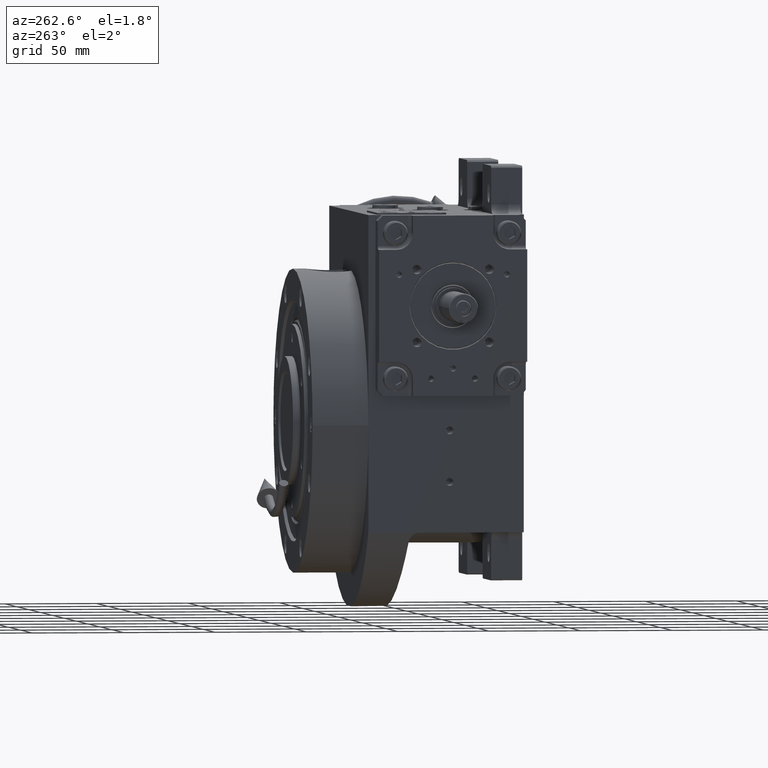
[diagram: clean part render]
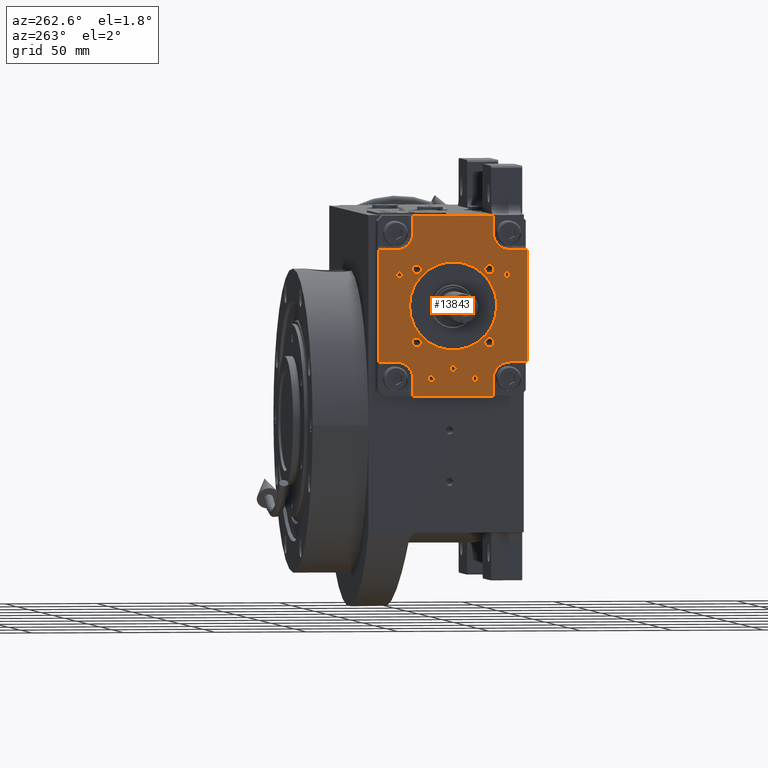
[diagram: same view with one face highlighted and labeled with its STEP entity id]
A machine part, auxiliary view. The second image highlights one B-rep face of the part: STEP entity #13843.
In plain terms, the highlighted planar face has unit normal (1, 0, -0).
Its self-contained STEP definition (entity closure, byte-faithful):
#67 = EDGE_CURVE ( 'NONE', #49934, #18135, #16758, .T. ) ;
#302 = CARTESIAN_POINT ( 'NONE',  ( -19.79898987322275872, -13.99999999999999822, 19.79898987322282267 ) ) ;
#349 = EDGE_CURVE ( 'NONE', #55268, #62085, #30491, .T. ) ;
#430 = CARTESIAN_POINT ( 'NONE',  ( 19.79898987322393822, -13.99999999999999822, 19.79898987322378190 ) ) ;
#720 = CARTESIAN_POINT ( 'NONE',  ( 22.29898987322275872, -13.99999999999999822, -19.79898987322287240 ) ) ;
#1178 = CARTESIAN_POINT ( 'NONE',  ( 1.650000000000965805, -13.99999999999999822, 34.00000000000000000 ) ) ;
#1372 = ORIENTED_EDGE ( 'NONE', *, *, #67, .F. ) ;
#1652 = DIRECTION ( 'NONE',  ( -4.295482660299454155E-29, -1.000000000000000000, -3.774758283725543281E-15 ) ) ;
#1709 = CARTESIAN_POINT ( 'NONE',  ( -18.97165082881188880, -13.99999999999994493, -14.56102186836356616 ) ) ;
#1923 = LINE ( 'NONE', #22003, #37430 ) ;
#1962 = CARTESIAN_POINT ( 'NONE',  ( -11.99999999999887912, -13.99999999999998401, 39.49999999999953104 ) ) ;
#2026 = EDGE_CURVE ( 'NONE', #24065, #44769, #13199, .T. ) ;
#2212 = CIRCLE ( 'NONE', #17769, 1.650000000000000355 ) ;
#2296 = CARTESIAN_POINT ( 'NONE',  ( 30.99999999999917577, -14.00000000000001243, -30.49999999999905498 ) ) ;
#2435 = CARTESIAN_POINT ( 'NONE',  ( -3.119331459816308882, -14.00000000000009237, 23.71108225105577461 ) ) ;
#2504 = DIRECTION ( 'NONE',  ( -4.295482660299454155E-29, -1.000000000000000000, -3.774758283725543281E-15 ) ) ;
#2550 = EDGE_CURVE ( 'NONE', #46750, #31758, #51068, .T. ) ;
#2792 = CIRCLE ( 'NONE', #47225, 2.499999999999998668 ) ;
#3050 = EDGE_CURVE ( 'NONE', #52202, #45153, #3740, .T. ) ;
#3085 = ORIENTED_EDGE ( 'NONE', *, *, #15934, .F. ) ;
#3087 = CARTESIAN_POINT ( 'NONE',  ( 7.685169508964895257, -14.00000000000008527, 22.64680274495815482 ) ) ;
#3105 = EDGE_CURVE ( 'NONE', #60213, #62398, #5810, .T. ) ;
#3114 = VERTEX_POINT ( 'NONE', #46195 ) ;
#3148 = CARTESIAN_POINT ( 'NONE',  ( -22.00000000000129674, -14.00000000000047073, -49.00000000000093081 ) ) ;
#3203 = CARTESIAN_POINT ( 'NONE',  ( 20.71231213005230032, -13.99999999999995559, -11.95552765314615229 ) ) ;
#3281 = AXIS2_PLACEMENT_3D ( 'NONE', #302, #9387, #59473 ) ;
#3321 = ORIENTED_EDGE ( 'NONE', *, *, #62120, .T. ) ;
#3399 = CARTESIAN_POINT ( 'NONE',  ( 21.44833792708046616, -14.00000000000004086, 10.57861081113255253 ) ) ;
#3740 = CIRCLE ( 'NONE', #25468, 1.649999999999998579 ) ;
#4013 = EDGE_CURVE ( 'NONE', #19808, #55268, #10846, .T. ) ;
#4234 = CARTESIAN_POINT ( 'NONE',  ( -40.50000000000071054, -14.00000000000001243, -30.50000000000095568 ) ) ;
#4324 = CARTESIAN_POINT ( 'NONE',  ( -10.34999999999887876, -13.99999999999998401, 39.49999999999953104 ) ) ;
#4342 = AXIS2_PLACEMENT_3D ( 'NONE', #49642, #5984, #24787 ) ;
#4540 = CARTESIAN_POINT ( 'NONE',  ( -31.00000000000106226, -14.00000000000001243, -39.50000000000092371 ) ) ;
#4634 = FACE_BOUND ( 'NONE', #38028, .T. ) ;
#4958 = FACE_BOUND ( 'NONE', #21480, .T. ) ;
#4973 = DIRECTION ( 'NONE',  ( 4.295482660299454155E-29, 1.000000000000000000, 3.774758283725543281E-15 ) ) ;
#5045 = VERTEX_POINT ( 'NONE', #7866 ) ;
#5135 = CARTESIAN_POINT ( 'NONE',  ( 12.00000000000112088, -13.99999999999998401, 39.50000000000046185 ) ) ;
#5285 = FACE_BOUND ( 'NONE', #38779, .T. ) ;
#5593 = DIRECTION ( 'NONE',  ( -1.498077582325793783E-28, 1.000000000000000000, 3.774758283725543281E-15 ) ) ;
#5601 = AXIS2_PLACEMENT_3D ( 'NONE', #55523, #60683, #15143 ) ;
#5810 = CIRCLE ( 'NONE', #56413, 2.499999999999998668 ) ;
#5984 = DIRECTION ( 'NONE',  ( -4.295482660299454155E-29, -1.000000000000000000, -3.774758283725543281E-15 ) ) ;
#6013 = EDGE_LOOP ( 'NONE', ( #40679, #51689 ) ) ;
#6063 = AXIS2_PLACEMENT_3D ( 'NONE', #4540, #59174, #19448 ) ;
#6147 = DIRECTION ( 'NONE',  ( -1.000000000000000000, -4.294175747842013256E-29, -2.831068712794148863E-14 ) ) ;
#6205 = VECTOR ( 'NONE', #61056, 1000.000000000000000 ) ;
#6270 = CARTESIAN_POINT ( 'NONE',  ( -31.00000000000082423, -14.00000000000001243, -30.50000000000094147 ) ) ;
#6396 = DIRECTION ( 'NONE',  ( -4.295482660299454155E-29, -1.000000000000000000, -3.774758283725543281E-15 ) ) ;
#6498 = EDGE_CURVE ( 'NONE', #6563, #30193, #2212, .T. ) ;
#6563 = VERTEX_POINT ( 'NONE', #21391 ) ;
#6572 = CARTESIAN_POINT ( 'NONE',  ( -3.118952648202116595, -13.99999999999990941, -23.71108882256597639 ) ) ;
#6892 = CARTESIAN_POINT ( 'NONE',  ( -22.34697688814391370, -13.99999999999996980, -8.409466773888212288 ) ) ;
#6920 = VECTOR ( 'NONE', #26086, 1000.000000000000000 ) ;
#7302 = CARTESIAN_POINT ( 'NONE',  ( 20.71277833345420305, -14.00000000000004263, 11.95494346992354906 ) ) ;
#7622 = CARTESIAN_POINT ( 'NONE',  ( 17.98245215247009199, -14.00000000000005329, 15.76637152696359578 ) ) ;
#7669 = CARTESIAN_POINT ( 'NONE',  ( -40.50000000000071054, -14.00000000000001243, -30.50000000000095568 ) ) ;
#7732 = CARTESIAN_POINT ( 'NONE',  ( 23.09942915084176818, -13.99999999999997868, -6.192947907790525619 ) ) ;
#7866 = CARTESIAN_POINT ( 'NONE',  ( 17.29898987322275872, -13.99999999999999822, -19.79898987322287240 ) ) ;
#8182 = AXIS2_PLACEMENT_3D ( 'NONE', #9635, #29388, #44562 ) ;
#8192 = EDGE_CURVE ( 'NONE', #62398, #60213, #62133, .T. ) ;
#8266 = CARTESIAN_POINT ( 'NONE',  ( -11.95544121681367677, -14.00000000000007994, 20.71254616477397903 ) ) ;
#8373 = CARTESIAN_POINT ( 'NONE',  ( -17.29898987322275872, -13.99999999999999822, 19.79898987322282267 ) ) ;
#8419 = ORIENTED_EDGE ( 'NONE', *, *, #22453, .T. ) ;
#8678 = DIRECTION ( 'NONE',  ( -4.295482660299454155E-29, -1.000000000000000000, -3.774758283725543281E-15 ) ) ;
#8765 = CIRCLE ( 'NONE', #20283, 1.649999999999999911 ) ;
#9387 = DIRECTION ( 'NONE',  ( -4.295482660299454155E-29, -1.000000000000000000, -3.774758283725543281E-15 ) ) ;
#9531 = AXIS2_PLACEMENT_3D ( 'NONE', #23553, #38743, #19649 ) ;
#9635 = CARTESIAN_POINT ( 'NONE',  ( 30.99999999999893774, -14.00000000000001243, -39.49999999999906208 ) ) ;
#9890 = VERTEX_POINT ( 'NONE', #56647 ) ;
#9909 = CARTESIAN_POINT ( 'NONE',  ( -22.29898987322393822, -13.99999999999999822, -19.79898987322428638 ) ) ;
#10846 = B_SPLINE_CURVE_WITH_KNOTS ( 'NONE', 3,
 ( #26663, #56372, #6572, #26325, #31836, #50563, #46039, #22435, #46999, #16939, #1709, #12092, #42171, #6892, #60903, #51859, #21152, #27297, #60567, #21803, #15983, #21477 ),
 .UNSPECIFIED., .F., .F.,
 ( 4, 2, 2, 2, 2, 2, 2, 1, 1, 2, 2, 4 ),
 ( 0.5000000711331469283, 0.5625000622415036178, 0.6250000533498601962, 0.6875000444582168857, 0.7500000355665734642, 0.8125000266749300426, 0.8750000177832867321, 0.9062500133374651323, 0.9218750111145542769, 0.9296875100030987937, 0.9375000088916434215, 1.000000000000000000 ),
 .UNSPECIFIED. ) ;
#11026 = ORIENTED_EDGE ( 'NONE', *, *, #53874, .F. ) ;
#11039 = DIRECTION ( 'NONE',  ( -1.000000000000000000, 0.000000000000000000, -2.943773171354580837E-14 ) ) ;
#11430 = CARTESIAN_POINT ( 'NONE',  ( -17.29898987322393822, -13.99999999999999822, -19.79898987322381743 ) ) ;
#11550 = EDGE_CURVE ( 'NONE', #52294, #25502, #17102, .T. ) ;
#11603 = CARTESIAN_POINT ( 'NONE',  ( -27.79486372867136978, -13.99999999999999822, -17.00000000000093081 ) ) ;
#11855 = CARTESIAN_POINT ( 'NONE',  ( 23.32664490037724292, -14.00000000000002132, 5.038317025994189180 ) ) ;
#11983 = DIRECTION ( 'NONE',  ( 2.831068712794148547E-14, 3.774758283725543281E-15, 1.000000000000000000 ) ) ;
#12092 = CARTESIAN_POINT ( 'NONE',  ( -20.71277920861294675, -13.99999999999995559, -11.95494192533104361 ) ) ;
#12133 = B_SPLINE_CURVE_WITH_KNOTS ( 'NONE', 3,
 ( #12309, #32038, #22969, #42373, #46569, #13581, #57198, #7732, #37212, #46882, #3203, #57853, #52042, #17145, #22317, #51415, #62360, #36886, #18099, #32661, #57523, #56893 ),
 .UNSPECIFIED., .F., .F.,
 ( 4, 1, 1, 2, 2, 2, 2, 2, 2, 2, 2, 4 ),
 ( 0.000000000000000000, 0.03125000444582186343, 0.04687500666873279515, 0.05468750778018826447, 0.06250000889164369910, 0.1250000177832869819, 0.1875000266749302924, 0.2500000355665735752, 0.3125000444582168857, 0.3750000533498602517, 0.4375000622415035623, 0.5000000711331469283 ),
 .UNSPECIFIED. ) ;
#12241 = EDGE_CURVE ( 'NONE', #9890, #55003, #8765, .T. ) ;
#12309 = CARTESIAN_POINT ( 'NONE',  ( 23.86397420030310101, -13.99999855607482502, 1.113405617703122630E-07 ) ) ;
#12457 = EDGE_LOOP ( 'NONE', ( #42161, #50963 ) ) ;
#12504 = CARTESIAN_POINT ( 'NONE',  ( -18.97212075496599226, -14.00000000000005507, 14.56041685813999997 ) ) ;
#12816 = CARTESIAN_POINT ( 'NONE',  ( -14.56088801808533439, -14.00000000000007105, 18.97165839184616587 ) ) ;
#13199 = LINE ( 'NONE', #3148, #62358 ) ;
#13202 = VECTOR ( 'NONE', #17725, 1000.000000000000000 ) ;
#13216 = CARTESIAN_POINT ( 'NONE',  ( 40.49999999999929656, -14.00000000000001243, -30.49999999999904077 ) ) ;
#13284 = EDGE_CURVE ( 'NONE', #45153, #52202, #62454, .T. ) ;
#13300 = CIRCLE ( 'NONE', #25670, 2.499999999999998668 ) ;
#13581 = CARTESIAN_POINT ( 'NONE',  ( 23.47920115566111221, -13.99999999999998224, -4.271604635540419359 ) ) ;
#13606 = DIRECTION ( 'NONE',  ( -4.295482660299454155E-29, -1.000000000000000000, -3.774758283725543281E-15 ) ) ;
#13630 = EDGE_LOOP ( 'NONE', ( #53972, #28519 ) ) ;
#13641 = ORIENTED_EDGE ( 'NONE', *, *, #63074, .F. ) ;
#13843 = ADVANCED_FACE ( 'NONE', ( #53489, #63808, #45064, #29262, #4958, #4634, #5285, #14065, #30217, #19858, #39587 ), #14395, .F. ) ;
#14065 = FACE_BOUND ( 'NONE', #29039, .T. ) ;
#14322 = CIRCLE ( 'NONE', #39096, 2.499999999999998668 ) ;
#14395 = PLANE ( 'NONE',  #59405 ) ;
#14700 = EDGE_CURVE ( 'NONE', #48105, #3114, #50777, .T. ) ;
#15022 = ORIENTED_EDGE ( 'NONE', *, *, #53266, .F. ) ;
#15143 = DIRECTION ( 'NONE',  ( 1.000000000000000000, 0.000000000000000000, 2.733503659114971031E-14 ) ) ;
#15509 = VERTEX_POINT ( 'NONE', #37306 ) ;
#15934 = EDGE_CURVE ( 'NONE', #48105, #24065, #39194, .T. ) ;
#15952 = ORIENTED_EDGE ( 'NONE', *, *, #2550, .F. ) ;
#15983 = CARTESIAN_POINT ( 'NONE',  ( -23.86245127016168865, -13.99999999999999467, -1.574215097676592512 ) ) ;
#16452 = CARTESIAN_POINT ( 'NONE',  ( -21.99999999999893774, -13.99999999999998401, 39.49999999999952394 ) ) ;
#16467 = CIRCLE ( 'NONE', #8182, 9.000000000000001776 ) ;
#16577 = ORIENTED_EDGE ( 'NONE', *, *, #2026, .F. ) ;
#16758 = CIRCLE ( 'NONE', #9531, 2.499999999999998668 ) ;
#16884 = ORIENTED_EDGE ( 'NONE', *, *, #17688, .F. ) ;
#16939 = CARTESIAN_POINT ( 'NONE',  ( -17.98245375129773294, -13.99999999999993605, -15.76636968212421763 ) ) ;
#17014 = EDGE_CURVE ( 'NONE', #23473, #56880, #36434, .T. ) ;
#17026 = CARTESIAN_POINT ( 'NONE',  ( 23.36748957619225564, -14.00000000000001954, 4.845252721683312558 ) ) ;
#17102 = CIRCLE ( 'NONE', #41898, 1.650000000000000355 ) ;
#17145 = CARTESIAN_POINT ( 'NONE',  ( 15.76650524893556238, -13.99999999999992717, -17.98226651476915805 ) ) ;
#17308 = ORIENTED_EDGE ( 'NONE', *, *, #4013, .T. ) ;
#17350 = CARTESIAN_POINT ( 'NONE',  ( -23.63854925147816033, -14.00000000000000888, 3.311476437734099498 ) ) ;
#17670 = CARTESIAN_POINT ( 'NONE',  ( -23.86397420030304772, -13.99999855607482502, -1.113405617703122630E-07 ) ) ;
#17682 = ORIENTED_EDGE ( 'NONE', *, *, #17014, .F. ) ;
#17688 = EDGE_CURVE ( 'NONE', #18135, #49934, #23526, .T. ) ;
#17725 = DIRECTION ( 'NONE',  ( 2.831068712794148547E-14, 3.774758283725543281E-15, 1.000000000000000000 ) ) ;
#17769 = AXIS2_PLACEMENT_3D ( 'NONE', #1962, #50809, #11039 ) ;
#17984 = CARTESIAN_POINT ( 'NONE',  ( 15.76639915680304682, -14.00000000000006750, 17.98227038497826769 ) ) ;
#18099 = CARTESIAN_POINT ( 'NONE',  ( 6.191961161476491782, -13.99999999999991473, -23.09972976944129996 ) ) ;
#18135 = VERTEX_POINT ( 'NONE', #9909 ) ;
#18305 = CARTESIAN_POINT ( 'NONE',  ( 23.70962956883355588, -14.00000000000001243, 3.125609056103567429 ) ) ;
#18558 = CARTESIAN_POINT ( 'NONE',  ( -30.99999999999893774, -13.99999999999998401, 39.49999999999905498 ) ) ;
#18598 = EDGE_CURVE ( 'NONE', #29798, #36440, #43240, .T. ) ;
#18614 = VERTEX_POINT ( 'NONE', #44449 ) ;
#19222 = DIRECTION ( 'NONE',  ( 1.000000000000000000, 4.294175747842013256E-29, 2.831068712794148863E-14 ) ) ;
#19448 = DIRECTION ( 'NONE',  ( 2.775557561562890720E-14, 3.854941057726237111E-15, 1.000000000000000000 ) ) ;
#19522 = ORIENTED_EDGE ( 'NONE', *, *, #38888, .F. ) ;
#19536 = AXIS2_PLACEMENT_3D ( 'NONE', #5135, #40086, #34918 ) ;
#19649 = DIRECTION ( 'NONE',  ( 1.000000000000000000, 0.000000000000000000, 2.775557561562892929E-14 ) ) ;
#19716 = VERTEX_POINT ( 'NONE', #6270 ) ;
#19762 = DIRECTION ( 'NONE',  ( 1.000000000000000000, 4.294175747842013256E-29, 2.831068712794148863E-14 ) ) ;
#19808 = VERTEX_POINT ( 'NONE', #42183 ) ;
#19858 = FACE_BOUND ( 'NONE', #39520, .T. ) ;
#19888 = ORIENTED_EDGE ( 'NONE', *, *, #349, .T. ) ;
#20283 = AXIS2_PLACEMENT_3D ( 'NONE', #26711, #35447, #55786 ) ;
#20567 = CARTESIAN_POINT ( 'NONE',  ( 10.35000000000112053, -13.99999999999998401, 39.50000000000023448 ) ) ;
#20785 = ORIENTED_EDGE ( 'NONE', *, *, #57580, .T. ) ;
#20982 = DIRECTION ( 'NONE',  ( 1.000000000000000000, 0.000000000000000000, 2.636779683484748046E-14 ) ) ;
#21152 = CARTESIAN_POINT ( 'NONE',  ( -23.24092231173644052, -13.99999999999998224, -5.420263831053940606 ) ) ;
#21391 = CARTESIAN_POINT ( 'NONE',  ( -13.64999999999887947, -13.99999999999998401, 39.49999999999953104 ) ) ;
#21477 = CARTESIAN_POINT ( 'NONE',  ( -23.86397420030304772, -13.99999855607482502, -1.113405617703122630E-07 ) ) ;
#21480 = EDGE_LOOP ( 'NONE', ( #59188, #17308, #19888 ) ) ;
#21803 = CARTESIAN_POINT ( 'NONE',  ( -23.70962961231633770, -13.99999999999998401, -3.125608614640585259 ) ) ;
#21912 = CIRCLE ( 'NONE', #4342, 1.649999999999998579 ) ;
#22003 = CARTESIAN_POINT ( 'NONE',  ( 40.50000000000094502, -13.99999999999999822, 30.50000000000117950 ) ) ;
#22186 = ORIENTED_EDGE ( 'NONE', *, *, #50216, .F. ) ;
#22194 = AXIS2_PLACEMENT_3D ( 'NONE', #32367, #52699, #62372 ) ;
#22197 = CARTESIAN_POINT ( 'NONE',  ( -1.566779169208735389, -14.00000000000008882, 23.86393717191058528 ) ) ;
#22255 = ORIENTED_EDGE ( 'NONE', *, *, #6498, .F. ) ;
#22317 = CARTESIAN_POINT ( 'NONE',  ( 14.56088552662168389, -13.99999999999992895, -18.97166031808825792 ) ) ;
#22435 = CARTESIAN_POINT ( 'NONE',  ( -14.56055017842635557, -13.99999999999993072, -18.97195719011450876 ) ) ;
#22453 = EDGE_CURVE ( 'NONE', #3114, #36780, #16467, .T. ) ;
#22602 = DIRECTION ( 'NONE',  ( 1.000000000000000000, 0.000000000000000000, 3.784851220313037103E-14 ) ) ;
#22842 = CARTESIAN_POINT ( 'NONE',  ( 18.97164947463525664, -14.00000000000005329, 14.56102366058744835 ) ) ;
#22969 = CARTESIAN_POINT ( 'NONE',  ( 23.80536272683590227, -13.99999999999999112, -1.958930260381883004 ) ) ;
#23019 = CARTESIAN_POINT ( 'NONE',  ( -22.00000000000105871, -14.00000000000001243, -39.50000000000092371 ) ) ;
#23149 = CARTESIAN_POINT ( 'NONE',  ( -22.64668203140375269, -14.00000000000003020, 7.685839165587933230 ) ) ;
#23168 = VERTEX_POINT ( 'NONE', #24140 ) ;
#23267 = CARTESIAN_POINT ( 'NONE',  ( 12.00000000000112088, -13.99999999999998401, 39.50000000000046185 ) ) ;
#23473 = VERTEX_POINT ( 'NONE', #53467 ) ;
#23526 = CIRCLE ( 'NONE', #37988, 2.499999999999998668 ) ;
#23553 = CARTESIAN_POINT ( 'NONE',  ( -19.79898987322393822, -13.99999999999999822, -19.79898987322428638 ) ) ;
#24065 = VERTEX_POINT ( 'NONE', #48546 ) ;
#24140 = CARTESIAN_POINT ( 'NONE',  ( 31.09486372867042547, -13.99999999999999822, -16.99999999999905853 ) ) ;
#24785 = VECTOR ( 'NONE', #57441, 1000.000000000000000 ) ;
#24787 = DIRECTION ( 'NONE',  ( -1.000000000000000000, 0.000000000000000000, -2.733503659114971031E-14 ) ) ;
#25159 = EDGE_LOOP ( 'NONE', ( #19522, #13641 ) ) ;
#25468 = AXIS2_PLACEMENT_3D ( 'NONE', #55568, #2504, #22602 ) ;
#25502 = VERTEX_POINT ( 'NONE', #46584 ) ;
#25670 = AXIS2_PLACEMENT_3D ( 'NONE', #26928, #50504, #46637 ) ;
#25968 = VERTEX_POINT ( 'NONE', #16452 ) ;
#26086 = DIRECTION ( 'NONE',  ( 1.000000000000000000, 4.294175747842013256E-29, 2.831068712794148863E-14 ) ) ;
#26109 = EDGE_CURVE ( 'NONE', #47946, #23473, #62614, .T. ) ;
#26325 = CARTESIAN_POINT ( 'NONE',  ( -6.192332379422525790, -13.99999999999990941, -23.09972376668354954 ) ) ;
#26424 = CARTESIAN_POINT ( 'NONE',  ( -23.86397420030304772, -13.99999855607482502, -1.113405617703122630E-07 ) ) ;
#26436 = CARTESIAN_POINT ( 'NONE',  ( 22.00000000000141398, -13.99999999999952749, 49.00000000000071054 ) ) ;
#26663 = CARTESIAN_POINT ( 'NONE',  ( -2.721109384656056105E-10, -13.99999927803739830, -23.86397666347577484 ) ) ;
#26711 = CARTESIAN_POINT ( 'NONE',  ( 9.625633623500127400E-13, -13.99999999999999822, 34.00000000000000000 ) ) ;
#26730 = CARTESIAN_POINT ( 'NONE',  ( -40.49999999999905498, -13.99999999999999822, 30.49999999999882050 ) ) ;
#26928 = CARTESIAN_POINT ( 'NONE',  ( 19.79898987322275872, -13.99999999999999822, -19.79898987322287240 ) ) ;
#27297 = CARTESIAN_POINT ( 'NONE',  ( -23.32664505306335201, -13.99999999999997691, -5.038316317723427140 ) ) ;
#27378 = CARTESIAN_POINT ( 'NONE',  ( 22.34697646102477364, -14.00000000000003197, 8.409467918700963551 ) ) ;
#27949 = DIRECTION ( 'NONE',  ( 4.295482660299454155E-29, 1.000000000000000000, 3.774758283725543281E-15 ) ) ;
#27986 = CARTESIAN_POINT ( 'NONE',  ( -11.99999999999887912, -13.99999999999998401, 39.49999999999953104 ) ) ;
#28026 = DIRECTION ( 'NONE',  ( 1.000000000000000000, 4.294175747842013256E-29, 2.831068712794148863E-14 ) ) ;
#28142 = CARTESIAN_POINT ( 'NONE',  ( -40.50000000000071054, -14.00000000000001243, -30.50000000000095568 ) ) ;
#28444 = DIRECTION ( 'NONE',  ( 1.000000000000000000, 0.000000000000000000, 2.943773171354582099E-14 ) ) ;
#28519 = ORIENTED_EDGE ( 'NONE', *, *, #3105, .F. ) ;
#28620 = DIRECTION ( 'NONE',  ( -4.295482660299454155E-29, -1.000000000000000000, -3.774758283725543281E-15 ) ) ;
#28797 = VERTEX_POINT ( 'NONE', #32428 ) ;
#28978 = LINE ( 'NONE', #62247, #31089 ) ;
#29039 = EDGE_LOOP ( 'NONE', ( #1372, #16884 ) ) ;
#29134 = DIRECTION ( 'NONE',  ( -1.000000000000000000, 0.000000000000000000, -2.775557561562892929E-14 ) ) ;
#29187 = CARTESIAN_POINT ( 'NONE',  ( 21.99999999999869971, -14.00000000000047073, -48.99999999999953104 ) ) ;
#29262 = FACE_OUTER_BOUND ( 'NONE', #35145, .T. ) ;
#29388 = DIRECTION ( 'NONE',  ( 4.295482660299454155E-29, 1.000000000000000000, 3.774758283725543281E-15 ) ) ;
#29484 = VECTOR ( 'NONE', #19762, 1000.000000000000000 ) ;
#29489 = VECTOR ( 'NONE', #46148, 1000.000000000000000 ) ;
#29580 = DIRECTION ( 'NONE',  ( -4.295482660299454155E-29, -1.000000000000000000, -3.774758283725543281E-15 ) ) ;
#29798 = VERTEX_POINT ( 'NONE', #34496 ) ;
#30193 = VERTEX_POINT ( 'NONE', #4324 ) ;
#30217 = FACE_BOUND ( 'NONE', #54845, .T. ) ;
#30296 = CIRCLE ( 'NONE', #63307, 1.650000000000000355 ) ;
#30391 = CARTESIAN_POINT ( 'NONE',  ( -30.99999999999905498, -13.99999999999999822, 30.49999999999905498 ) ) ;
#30491 = B_SPLINE_CURVE_WITH_KNOTS ( 'NONE', 3,
 ( #17670, #62565, #61609, #17350, #42260, #52571, #37091, #46779, #23149, #41930, #57092, #12504, #61933, #31917, #12816, #8266, #56773, #37407, #32242, #2435, #22197, #47410, #51938, #41621, #3087, #32550, #47722, #37719, #17984, #7622, #22842, #7302, #3399, #27378, #47082, #61288, #42568, #11855, #17026, #18305, #62246, #57408 ),
 .UNSPECIFIED., .F., .F.,
 ( 4, 1, 1, 2, 2, 2, 2, 2, 2, 2, 2, 2, 2, 2, 2, 2, 2, 2, 1, 1, 2, 2, 4 ),
 ( 0.000000000000000000, 0.03125000000000020123, 0.04687500000000029143, 0.05468750000000034694, 0.06250000000000038858, 0.1250000000000004718, 0.1875000000000005551, 0.2500000000000006661, 0.3125000000000006661, 0.3750000000000006661, 0.4375000000000007216, 0.5000000000000006661, 0.5625000000000007772, 0.6250000000000007772, 0.6875000000000007772, 0.7500000000000006661, 0.8125000000000005551, 0.8750000000000004441, 0.9062500000000004441, 0.9218750000000003331, 0.9296875000000003331, 0.9375000000000002220, 1.000000000000000000 ),
 .UNSPECIFIED. ) ;
#30538 = DIRECTION ( 'NONE',  ( -1.000000000000000000, 0.000000000000000000, -2.636779683484748046E-14 ) ) ;
#30758 = DIRECTION ( 'NONE',  ( -2.831068712794148547E-14, -3.774758283725543281E-15, -1.000000000000000000 ) ) ;
#31089 = VECTOR ( 'NONE', #28026, 1000.000000000000000 ) ;
#31195 = ORIENTED_EDGE ( 'NONE', *, *, #11550, .F. ) ;
#31454 = DIRECTION ( 'NONE',  ( 1.000000000000000000, 0.000000000000000000, 2.636779683484748046E-14 ) ) ;
#31758 = VERTEX_POINT ( 'NONE', #37527 ) ;
#31836 = CARTESIAN_POINT ( 'NONE',  ( -7.685173543682704889, -13.99999999999991118, -22.64680135628322333 ) ) ;
#31917 = CARTESIAN_POINT ( 'NONE',  ( -15.76650740898569225, -14.00000000000006750, 17.98226460072634225 ) ) ;
#31993 = VERTEX_POINT ( 'NONE', #44263 ) ;
#32038 = CARTESIAN_POINT ( 'NONE',  ( 23.86322586898059939, -13.99999999999999822, -0.7869473592178296562 ) ) ;
#32143 = CARTESIAN_POINT ( 'NONE',  ( -19.79898987322393822, -13.99999999999999822, -19.79898987322428638 ) ) ;
#32242 = CARTESIAN_POINT ( 'NONE',  ( -6.191965501752854983, -14.00000000000008527, 23.09972859531175615 ) ) ;
#32367 = CARTESIAN_POINT ( 'NONE',  ( -29.44486372867137192, -13.99999999999999822, -17.00000000000093081 ) ) ;
#32428 = CARTESIAN_POINT ( 'NONE',  ( 22.00000000000141398, -13.99999999999952749, 49.00000000000071054 ) ) ;
#32550 = CARTESIAN_POINT ( 'NONE',  ( 10.57957080955147511, -14.00000000000007994, 21.44796303468496035 ) ) ;
#32557 = CARTESIAN_POINT ( 'NONE',  ( 21.99999999999869971, -14.00000000000047073, -48.99999999999953104 ) ) ;
#32661 = CARTESIAN_POINT ( 'NONE',  ( 3.119326620315172605, -13.99999999999990941, -23.71108290340073665 ) ) ;
#32945 = DIRECTION ( 'NONE',  ( 2.831068712794148547E-14, 3.774758283725543281E-15, 1.000000000000000000 ) ) ;
#33161 = DIRECTION ( 'NONE',  ( 1.000000000000000000, 0.000000000000000000, 2.943773171354580837E-14 ) ) ;
#33950 = CARTESIAN_POINT ( 'NONE',  ( 9.625633623500127400E-13, -13.99999999999999822, 34.00000000000000000 ) ) ;
#34496 = CARTESIAN_POINT ( 'NONE',  ( 31.00000000000094502, -13.99999999999999822, 30.50000000000094147 ) ) ;
#34918 = DIRECTION ( 'NONE',  ( 1.000000000000000000, 0.000000000000000000, 2.943773171354580837E-14 ) ) ;
#35145 = EDGE_LOOP ( 'NONE', ( #11026, #48241, #20785, #17682, #40342, #3321, #42433, #16577, #3085, #56316, #8419, #15022, #59112, #63277, #41439, #41556 ) ) ;
#35447 = DIRECTION ( 'NONE',  ( -4.295482660299454155E-29, -1.000000000000000000, -3.774758283725543281E-15 ) ) ;
#35601 = CIRCLE ( 'NONE', #5601, 1.649999999999998579 ) ;
#35603 = CARTESIAN_POINT ( 'NONE',  ( 40.50000000000094502, -13.99999999999999822, 30.50000000000117950 ) ) ;
#35826 = LINE ( 'NONE', #26436, #29489 ) ;
#36434 = LINE ( 'NONE', #26730, #6920 ) ;
#36440 = VERTEX_POINT ( 'NONE', #60661 ) ;
#36780 = VERTEX_POINT ( 'NONE', #2296 ) ;
#36886 = CARTESIAN_POINT ( 'NONE',  ( 7.685219915720692185, -13.99999999999991296, -22.64685220041129199 ) ) ;
#37091 = CARTESIAN_POINT ( 'NONE',  ( -23.44379417511130725, -14.00000000000001599, 4.461832321008357916 ) ) ;
#37212 = CARTESIAN_POINT ( 'NONE',  ( 22.64668168243262514, -13.99999999999997158, -7.685840235348960547 ) ) ;
#37306 = CARTESIAN_POINT ( 'NONE',  ( -21.99999999999858247, -13.99999999999952749, 48.99999999999953104 ) ) ;
#37407 = CARTESIAN_POINT ( 'NONE',  ( -7.685223904494162817, -14.00000000000008527, 22.64685083059221782 ) ) ;
#37408 = CARTESIAN_POINT ( 'NONE',  ( 40.50000000000094502, -13.99999999999999822, 30.50000000000117950 ) ) ;
#37430 = VECTOR ( 'NONE', #6147, 1000.000000000000000 ) ;
#37527 = CARTESIAN_POINT ( 'NONE',  ( 22.29898987322393822, -13.99999999999999822, 19.79898987322382098 ) ) ;
#37719 = CARTESIAN_POINT ( 'NONE',  ( 14.56054772235363082, -14.00000000000006928, 18.97195909268343073 ) ) ;
#37988 = AXIS2_PLACEMENT_3D ( 'NONE', #32143, #13606, #29134 ) ;
#38028 = EDGE_LOOP ( 'NONE', ( #63348, #31195 ) ) ;
#38397 = CIRCLE ( 'NONE', #61065, 1.649999999999999911 ) ;
#38743 = DIRECTION ( 'NONE',  ( -4.295482660299454155E-29, -1.000000000000000000, -3.774758283725543281E-15 ) ) ;
#38779 = EDGE_LOOP ( 'NONE', ( #40779, #22255 ) ) ;
#38888 = EDGE_CURVE ( 'NONE', #23168, #31993, #35601, .T. ) ;
#39096 = AXIS2_PLACEMENT_3D ( 'NONE', #45977, #1652, #31454 ) ;
#39194 = LINE ( 'NONE', #29187, #48260 ) ;
#39520 = EDGE_LOOP ( 'NONE', ( #22186, #15952 ) ) ;
#39587 = FACE_BOUND ( 'NONE', #13630, .T. ) ;
#40086 = DIRECTION ( 'NONE',  ( -4.295482660299454155E-29, -1.000000000000000000, -3.774758283725543281E-15 ) ) ;
#40342 = ORIENTED_EDGE ( 'NONE', *, *, #26109, .F. ) ;
#40679 = ORIENTED_EDGE ( 'NONE', *, *, #3050, .F. ) ;
#40753 = AXIS2_PLACEMENT_3D ( 'NONE', #430, #29580, #30538 ) ;
#40779 = ORIENTED_EDGE ( 'NONE', *, *, #49673, .F. ) ;
#41439 = ORIENTED_EDGE ( 'NONE', *, *, #18598, .T. ) ;
#41556 = ORIENTED_EDGE ( 'NONE', *, *, #60072, .F. ) ;
#41621 = CARTESIAN_POINT ( 'NONE',  ( 6.192328095637854801, -14.00000000000008349, 23.09972492920076093 ) ) ;
#41898 = AXIS2_PLACEMENT_3D ( 'NONE', #23267, #62355, #43629 ) ;
#41930 = CARTESIAN_POINT ( 'NONE',  ( -21.44818571229936666, -14.00000000000004086, 10.57917287093051684 ) ) ;
#42161 = ORIENTED_EDGE ( 'NONE', *, *, #62545, .F. ) ;
#42171 = CARTESIAN_POINT ( 'NONE',  ( -21.44833860699378647, -13.99999999999996092, -10.57860939760698749 ) ) ;
#42183 = CARTESIAN_POINT ( 'NONE',  ( -2.721109384656056105E-10, -13.99999927803739830, -23.86397666347577484 ) ) ;
#42260 = CARTESIAN_POINT ( 'NONE',  ( -23.54577778822957157, -14.00000000000002132, 3.887974903385350345 ) ) ;
#42373 = CARTESIAN_POINT ( 'NONE',  ( 23.63854918778859115, -13.99999999999998401, -3.311476904161794632 ) ) ;
#42433 = ORIENTED_EDGE ( 'NONE', *, *, #46383, .T. ) ;
#42568 = CARTESIAN_POINT ( 'NONE',  ( 23.24092213513678118, -14.00000000000002132, 5.420264589931520050 ) ) ;
#43014 = VECTOR ( 'NONE', #11983, 1000.000000000000000 ) ;
#43240 = CIRCLE ( 'NONE', #48393, 9.000000000000001776 ) ;
#43629 = DIRECTION ( 'NONE',  ( -1.000000000000000000, 0.000000000000000000, -2.943773171354580837E-14 ) ) ;
#43697 = CARTESIAN_POINT ( 'NONE',  ( 23.86397420030310101, -13.99999855607482502, 1.113405617703122630E-07 ) ) ;
#44108 = CARTESIAN_POINT ( 'NONE',  ( 1.571558834619984456E-28, -13.99999999999999822, 0.000000000000000000 ) ) ;
#44263 = CARTESIAN_POINT ( 'NONE',  ( 27.79486372867042476, -13.99999999999999822, -16.99999999999905853 ) ) ;
#44449 = CARTESIAN_POINT ( 'NONE',  ( 40.49999999999929656, -14.00000000000001243, -30.49999999999904077 ) ) ;
#44562 = DIRECTION ( 'NONE',  ( -1.000000000000000000, 0.000000000000000000, -2.852656382717415620E-14 ) ) ;
#44612 = EDGE_CURVE ( 'NONE', #5045, #60907, #13300, .T. ) ;
#44689 = EDGE_CURVE ( 'NONE', #60907, #5045, #14322, .T. ) ;
#44766 = CARTESIAN_POINT ( 'NONE',  ( 31.00000000000106226, -13.99999999999998401, 39.50000000000071054 ) ) ;
#44769 = VERTEX_POINT ( 'NONE', #23019 ) ;
#45064 = FACE_BOUND ( 'NONE', #12457, .T. ) ;
#45153 = VERTEX_POINT ( 'NONE', #46549 ) ;
#45977 = CARTESIAN_POINT ( 'NONE',  ( 19.79898987322275872, -13.99999999999999822, -19.79898987322282977 ) ) ;
#46039 = CARTESIAN_POINT ( 'NONE',  ( -11.95576278632398903, -13.99999999999991829, -20.71224872910296000 ) ) ;
#46148 = DIRECTION ( 'NONE',  ( -2.831068712794148547E-14, -3.774758283725543281E-15, -1.000000000000000000 ) ) ;
#46195 = CARTESIAN_POINT ( 'NONE',  ( 21.99999999999893774, -14.00000000000001243, -39.49999999999953815 ) ) ;
#46383 = EDGE_CURVE ( 'NONE', #19716, #44769, #61821, .T. ) ;
#46549 = CARTESIAN_POINT ( 'NONE',  ( -31.09486372867137050, -13.99999999999999822, -17.00000000000093081 ) ) ;
#46569 = CARTESIAN_POINT ( 'NONE',  ( 23.54577769822290634, -13.99999999999998046, -3.887975449872154599 ) ) ;
#46584 = CARTESIAN_POINT ( 'NONE',  ( 13.65000000000112124, -13.99999999999998401, 39.50000000000046185 ) ) ;
#46637 = DIRECTION ( 'NONE',  ( -1.000000000000000000, 0.000000000000000000, -2.636779683484748046E-14 ) ) ;
#46750 = VERTEX_POINT ( 'NONE', #49405 ) ;
#46779 = CARTESIAN_POINT ( 'NONE',  ( -23.09942936675866676, -14.00000000000002309, 6.192947045178502030 ) ) ;
#46882 = CARTESIAN_POINT ( 'NONE',  ( 21.44818503823665168, -13.99999999999996270, -10.57917427091263640 ) ) ;
#46999 = CARTESIAN_POINT ( 'NONE',  ( -15.76640134121093695, -13.99999999999992895, -17.98226844684482728 ) ) ;
#47082 = CARTESIAN_POINT ( 'NONE',  ( 22.74139545049670730, -14.00000000000002842, 7.307390402314824840 ) ) ;
#47099 = EDGE_CURVE ( 'NONE', #15509, #25968, #52281, .T. ) ;
#47225 = AXIS2_PLACEMENT_3D ( 'NONE', #50377, #6396, #20982 ) ;
#47410 = CARTESIAN_POINT ( 'NONE',  ( 1.566768470596048068, -14.00000000000009237, 23.86400311483101788 ) ) ;
#47722 = CARTESIAN_POINT ( 'NONE',  ( 11.95575968379388243, -14.00000000000007994, 20.71225054030661639 ) ) ;
#47762 = AXIS2_PLACEMENT_3D ( 'NONE', #18558, #27949, #62489 ) ;
#47946 = VERTEX_POINT ( 'NONE', #28142 ) ;
#48105 = VERTEX_POINT ( 'NONE', #32557 ) ;
#48241 = ORIENTED_EDGE ( 'NONE', *, *, #47099, .T. ) ;
#48260 = VECTOR ( 'NONE', #54677, 1000.000000000000000 ) ;
#48393 = AXIS2_PLACEMENT_3D ( 'NONE', #44766, #4973, #48963 ) ;
#48546 = CARTESIAN_POINT ( 'NONE',  ( -22.00000000000129674, -14.00000000000047073, -49.00000000000093081 ) ) ;
#48607 = EDGE_CURVE ( 'NONE', #62085, #19808, #12133, .T. ) ;
#48963 = DIRECTION ( 'NONE',  ( -2.775557561562890720E-14, -3.854941057726237111E-15, -1.000000000000000000 ) ) ;
#49405 = CARTESIAN_POINT ( 'NONE',  ( 17.29898987322393822, -13.99999999999999822, 19.79898987322381743 ) ) ;
#49642 = CARTESIAN_POINT ( 'NONE',  ( 29.44486372867042689, -13.99999999999999822, -16.99999999999905853 ) ) ;
#49673 = EDGE_CURVE ( 'NONE', #30193, #6563, #30296, .T. ) ;
#49934 = VERTEX_POINT ( 'NONE', #11430 ) ;
#50216 = EDGE_CURVE ( 'NONE', #31758, #46750, #2792, .T. ) ;
#50377 = CARTESIAN_POINT ( 'NONE',  ( 19.79898987322393822, -13.99999999999999822, 19.79898987322382098 ) ) ;
#50504 = DIRECTION ( 'NONE',  ( -4.295482660299454155E-29, -1.000000000000000000, -3.774758283725543281E-15 ) ) ;
#50563 = CARTESIAN_POINT ( 'NONE',  ( -10.57957418679679229, -13.99999999999991651, -21.44796135337860932 ) ) ;
#50777 = LINE ( 'NONE', #56262, #43014 ) ;
#50809 = DIRECTION ( 'NONE',  ( -4.295482660299454155E-29, -1.000000000000000000, -3.774758283725543281E-15 ) ) ;
#50963 = ORIENTED_EDGE ( 'NONE', *, *, #12241, .F. ) ;
#51068 = CIRCLE ( 'NONE', #40753, 2.499999999999998668 ) ;
#51415 = CARTESIAN_POINT ( 'NONE',  ( 11.95543814826823770, -13.99999999999992006, -20.71254795357625866 ) ) ;
#51420 = LINE ( 'NONE', #35603, #53956 ) ;
#51689 = ORIENTED_EDGE ( 'NONE', *, *, #13284, .F. ) ;
#51859 = CARTESIAN_POINT ( 'NONE',  ( -23.10547566701053768, -13.99999999999997335, -5.990996842902134745 ) ) ;
#51938 = CARTESIAN_POINT ( 'NONE',  ( 3.118947749979955830, -14.00000000000008882, 23.71108948655760784 ) ) ;
#52042 = CARTESIAN_POINT ( 'NONE',  ( 17.98235770176432879, -13.99999999999993783, -15.76636675099964080 ) ) ;
#52092 = EDGE_CURVE ( 'NONE', #25502, #52294, #54636, .T. ) ;
#52202 = VERTEX_POINT ( 'NONE', #11603 ) ;
#52281 = LINE ( 'NONE', #57123, #24785 ) ;
#52294 = VERTEX_POINT ( 'NONE', #20567 ) ;
#52571 = CARTESIAN_POINT ( 'NONE',  ( -23.47920126455800371, -14.00000000000001421, 4.271604035881808592 ) ) ;
#52699 = DIRECTION ( 'NONE',  ( -4.295482660299454155E-29, -1.000000000000000000, -3.774758283725543281E-15 ) ) ;
#53266 = EDGE_CURVE ( 'NONE', #18614, #36780, #57486, .T. ) ;
#53382 = LINE ( 'NONE', #4234, #29484 ) ;
#53467 = CARTESIAN_POINT ( 'NONE',  ( -40.49999999999905498, -13.99999999999999822, 30.49999999999882050 ) ) ;
#53489 = FACE_BOUND ( 'NONE', #6013, .T. ) ;
#53689 = VERTEX_POINT ( 'NONE', #37408 ) ;
#53874 = EDGE_CURVE ( 'NONE', #15509, #28797, #28978, .T. ) ;
#53956 = VECTOR ( 'NONE', #30758, 1000.000000000000000 ) ;
#53972 = ORIENTED_EDGE ( 'NONE', *, *, #8192, .F. ) ;
#54636 = CIRCLE ( 'NONE', #19536, 1.650000000000000355 ) ;
#54677 = DIRECTION ( 'NONE',  ( -1.000000000000000000, -4.294175747842013256E-29, -2.831068712794148863E-14 ) ) ;
#54845 = EDGE_LOOP ( 'NONE', ( #57386, #57735 ) ) ;
#55003 = VERTEX_POINT ( 'NONE', #1178 ) ;
#55268 = VERTEX_POINT ( 'NONE', #26424 ) ;
#55523 = CARTESIAN_POINT ( 'NONE',  ( 29.44486372867042689, -13.99999999999999822, -16.99999999999905853 ) ) ;
#55568 = CARTESIAN_POINT ( 'NONE',  ( -29.44486372867137192, -13.99999999999999822, -17.00000000000093081 ) ) ;
#55786 = DIRECTION ( 'NONE',  ( -1.000000000000000000, 0.000000000000000000, -2.943773171354582099E-14 ) ) ;
#56202 = DIRECTION ( 'NONE',  ( -1.000000000000000000, 0.000000000000000000, -2.775557561562892929E-14 ) ) ;
#56262 = CARTESIAN_POINT ( 'NONE',  ( 21.99999999999869971, -14.00000000000047073, -48.99999999999953104 ) ) ;
#56316 = ORIENTED_EDGE ( 'NONE', *, *, #14700, .T. ) ;
#56372 = CARTESIAN_POINT ( 'NONE',  ( -1.566773563360392973, -13.99999999999990763, -23.86400276692703670 ) ) ;
#56413 = AXIS2_PLACEMENT_3D ( 'NONE', #62002, #61684, #56202 ) ;
#56647 = CARTESIAN_POINT ( 'NONE',  ( -1.649999999999034239, -13.99999999999999822, 34.00000000000000000 ) ) ;
#56773 = CARTESIAN_POINT ( 'NONE',  ( -10.57953588485652929, -14.00000000000007816, 21.44790465845246885 ) ) ;
#56880 = VERTEX_POINT ( 'NONE', #30391 ) ;
#56893 = CARTESIAN_POINT ( 'NONE',  ( -2.721109384656056105E-10, -13.99999927803739830, -23.86397666347577484 ) ) ;
#57092 = CARTESIAN_POINT ( 'NONE',  ( -20.71231301861905649, -14.00000000000004263, 11.95552608799911098 ) ) ;
#57113 = CARTESIAN_POINT ( 'NONE',  ( -22.29898987322275872, -13.99999999999999822, 19.79898987322235726 ) ) ;
#57123 = CARTESIAN_POINT ( 'NONE',  ( -21.99999999999858247, -13.99999999999952749, 48.99999999999953104 ) ) ;
#57198 = CARTESIAN_POINT ( 'NONE',  ( 23.44379405512639991, -13.99999999999998224, -4.461832952019680221 ) ) ;
#57386 = ORIENTED_EDGE ( 'NONE', *, *, #44689, .F. ) ;
#57408 = CARTESIAN_POINT ( 'NONE',  ( 23.86397420030310101, -13.99999855607482502, 1.113405617703122630E-07 ) ) ;
#57441 = DIRECTION ( 'NONE',  ( -2.831068712794148547E-14, -3.774758283725543281E-15, -1.000000000000000000 ) ) ;
#57486 = LINE ( 'NONE', #13216, #6205 ) ;
#57523 = CARTESIAN_POINT ( 'NONE',  ( 1.566774008614369773, -13.99999999999990763, -23.86393752002926050 ) ) ;
#57580 = EDGE_CURVE ( 'NONE', #25968, #56880, #59097, .T. ) ;
#57735 = ORIENTED_EDGE ( 'NONE', *, *, #44612, .F. ) ;
#57853 = CARTESIAN_POINT ( 'NONE',  ( 18.97211941539627844, -13.99999999999994138, -14.56041862828626066 ) ) ;
#59097 = CIRCLE ( 'NONE', #47762, 9.000000000000001776 ) ;
#59112 = ORIENTED_EDGE ( 'NONE', *, *, #63542, .F. ) ;
#59174 = DIRECTION ( 'NONE',  ( 4.295482660299454155E-29, 1.000000000000000000, 3.774758283725543281E-15 ) ) ;
#59188 = ORIENTED_EDGE ( 'NONE', *, *, #48607, .T. ) ;
#59405 = AXIS2_PLACEMENT_3D ( 'NONE', #44108, #5593, #19222 ) ;
#59473 = DIRECTION ( 'NONE',  ( 1.000000000000000000, 0.000000000000000000, 2.775557561562892929E-14 ) ) ;
#60072 = EDGE_CURVE ( 'NONE', #28797, #36440, #35826, .T. ) ;
#60213 = VERTEX_POINT ( 'NONE', #57113 ) ;
#60567 = CARTESIAN_POINT ( 'NONE',  ( -23.36748971678186138, -13.99999999999997868, -4.845252042924186320 ) ) ;
#60661 = CARTESIAN_POINT ( 'NONE',  ( 22.00000000000105871, -13.99999999999998401, 39.50000000000071054 ) ) ;
#60683 = DIRECTION ( 'NONE',  ( -4.295482660299454155E-29, -1.000000000000000000, -3.774758283725543281E-15 ) ) ;
#60903 = CARTESIAN_POINT ( 'NONE',  ( -22.74139576683487007, -13.99999999999997158, -7.307389396848209984 ) ) ;
#60907 = VERTEX_POINT ( 'NONE', #720 ) ;
#61056 = DIRECTION ( 'NONE',  ( -1.000000000000000000, -4.294175747842013256E-29, -2.831068712794148863E-14 ) ) ;
#61065 = AXIS2_PLACEMENT_3D ( 'NONE', #33950, #8678, #28444 ) ;
#61288 = CARTESIAN_POINT ( 'NONE',  ( 23.10547545258857483, -14.00000000000002132, 5.990997677066223659 ) ) ;
#61609 = CARTESIAN_POINT ( 'NONE',  ( -23.80536274324691703, -14.00000000000000711, 1.958929982868600650 ) ) ;
#61684 = DIRECTION ( 'NONE',  ( -4.295482660299454155E-29, -1.000000000000000000, -3.774758283725543281E-15 ) ) ;
#61821 = CIRCLE ( 'NONE', #6063, 9.000000000000001776 ) ;
#61933 = CARTESIAN_POINT ( 'NONE',  ( -17.98235932460677233, -14.00000000000005862, 15.76636488206861486 ) ) ;
#62002 = CARTESIAN_POINT ( 'NONE',  ( -19.79898987322275872, -13.99999999999999822, 19.79898987322282267 ) ) ;
#62085 = VERTEX_POINT ( 'NONE', #43697 ) ;
#62120 = EDGE_CURVE ( 'NONE', #47946, #19716, #53382, .T. ) ;
#62133 = CIRCLE ( 'NONE', #3281, 2.499999999999998668 ) ;
#62246 = CARTESIAN_POINT ( 'NONE',  ( 23.86245126994556287, -14.00000000000001066, 1.574215321675275447 ) ) ;
#62247 = CARTESIAN_POINT ( 'NONE',  ( -21.99999999999858247, -13.99999999999952749, 48.99999999999953104 ) ) ;
#62355 = DIRECTION ( 'NONE',  ( -4.295482660299454155E-29, -1.000000000000000000, -3.774758283725543281E-15 ) ) ;
#62358 = VECTOR ( 'NONE', #32945, 1000.000000000000000 ) ;
#62360 = CARTESIAN_POINT ( 'NONE',  ( 10.57953246189510566, -13.99999999999992006, -21.44790635888606900 ) ) ;
#62372 = DIRECTION ( 'NONE',  ( -1.000000000000000000, 0.000000000000000000, -1.471886585677291996E-14 ) ) ;
#62398 = VERTEX_POINT ( 'NONE', #8373 ) ;
#62454 = CIRCLE ( 'NONE', #22194, 1.649999999999998579 ) ;
#62489 = DIRECTION ( 'NONE',  ( 1.000000000000000000, 0.000000000000000000, 2.852656382717415620E-14 ) ) ;
#62545 = EDGE_CURVE ( 'NONE', #55003, #9890, #38397, .T. ) ;
#62565 = CARTESIAN_POINT ( 'NONE',  ( -23.86322586908651289, -14.00000000000000355, 0.7869472472480262271 ) ) ;
#62614 = LINE ( 'NONE', #7669, #13202 ) ;
#63074 = EDGE_CURVE ( 'NONE', #31993, #23168, #21912, .T. ) ;
#63277 = ORIENTED_EDGE ( 'NONE', *, *, #63474, .T. ) ;
#63307 = AXIS2_PLACEMENT_3D ( 'NONE', #27986, #28620, #33161 ) ;
#63348 = ORIENTED_EDGE ( 'NONE', *, *, #52092, .F. ) ;
#63474 = EDGE_CURVE ( 'NONE', #53689, #29798, #1923, .T. ) ;
#63542 = EDGE_CURVE ( 'NONE', #53689, #18614, #51420, .T. ) ;
#63808 = FACE_BOUND ( 'NONE', #25159, .T. ) ;